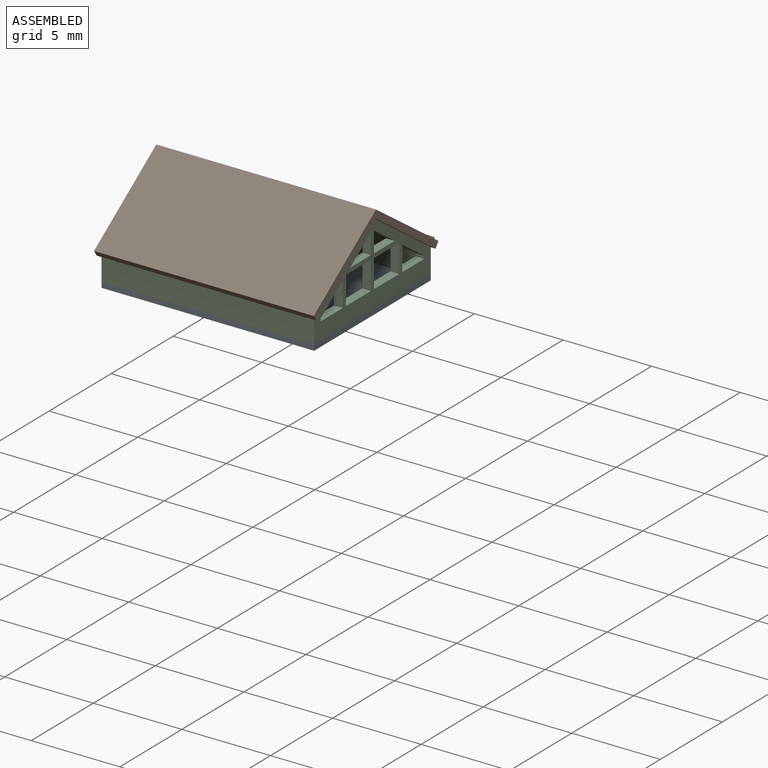
[diagram: assembled view]
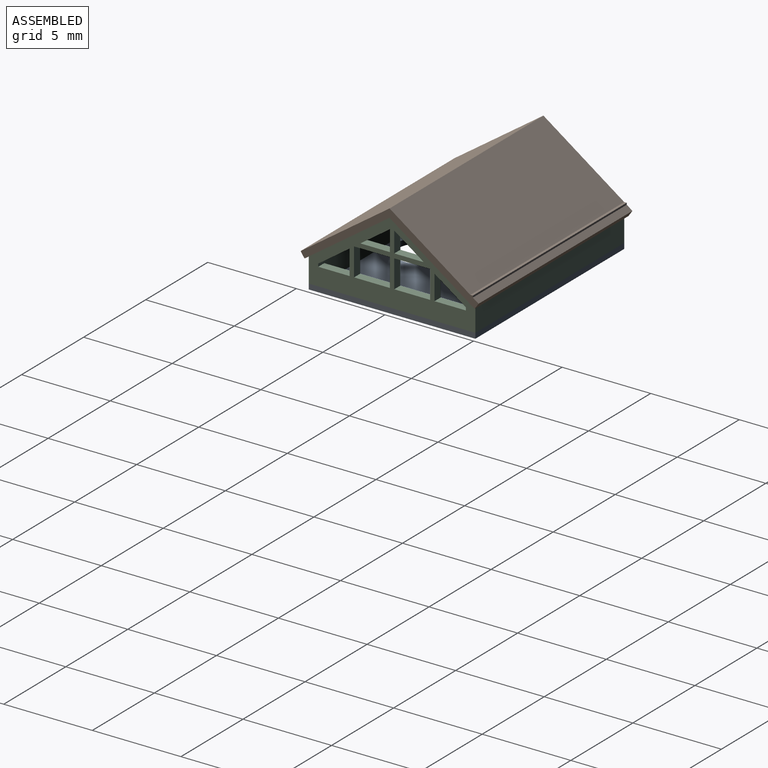
[diagram: assembled view, second angle]
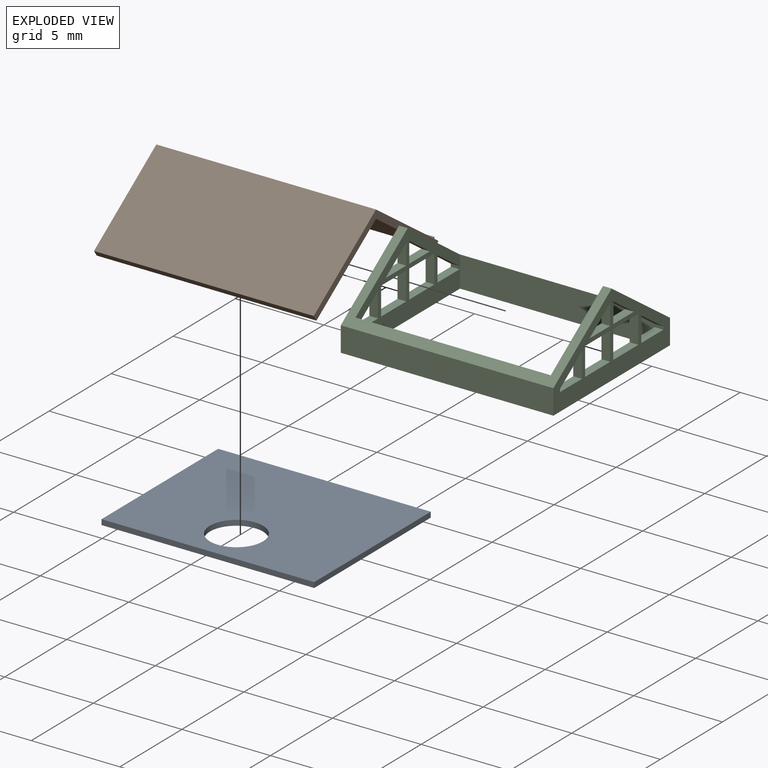
[diagram: exploded view]
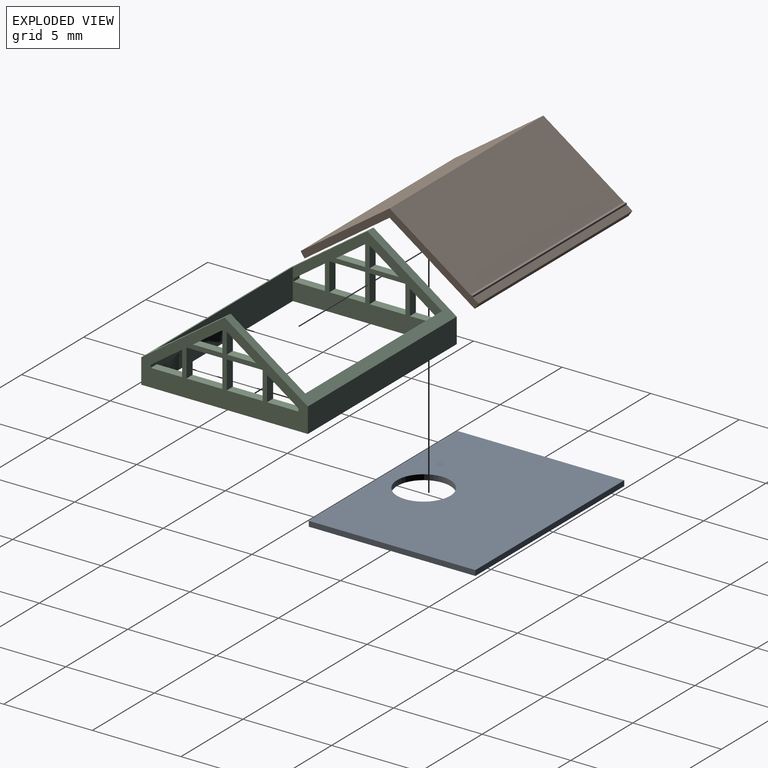
[diagram: exploded view, second angle]
ASSEMBLY  parts=3 mates=2
PART A: 7 faces, bbox 12x9.4x0.3 mm
  f0: plane 9.4x0.3mm, normal (-1,0,0), area 2.8mm2, adj f1,f3,f4,f5
  f1: plane 12x0.3mm, normal (0,-1,0), area 3.6mm2, adj f0,f2,f4,f5
  f2: plane 9.4x0.3mm, normal (1,0,0), area 2.8mm2, adj f1,f3,f4,f5
  f3: plane 12x0.3mm, normal (0,1,0), area 3.6mm2, adj f0,f2,f4,f5
  f4: plane 12x9.4mm, normal (0,0,-1), area 105.7mm2, adj f0,f1,f2,f3,f6
  f5: plane 12x9.4mm, normal (0,0,1), area 105.7mm2, adj f0,f1,f2,f3,f6
  f6: cylinder r=1.5mm len=3mm, axis (0,0,1), area 2.8mm2, adj f4,f5
PART B: 11 faces, bbox 12.4x10x3.8 mm
  f0: plane 12.4x4.56mm, normal (0,0.57,0.82), area 69mm2, adj f1,f8,f9,f10
  f1: plane 12.4x0.14mm, normal (0,0,1), area 1.8mm2, adj f0,f2,f9,f10
  f2: plane 12.4x0.1mm, normal (0,1,0), area 1.2mm2, adj f1,f3,f9,f10
  f3: plane 12.4x0.32mm, normal (0,0.57,0.82), area 4.9mm2, adj f2,f4,f9,f10
  f4: plane 12.4x0.32mm, normal (0,0.82,-0.57), area 4.8mm2, adj f3,f5,f9,f10
  f5: plane 12.4x4.8mm, normal (0,-0.57,-0.82), area 72.7mm2, adj f4,f6,f9,f10
  f6: plane 12.4x4.8mm, normal (0,0.57,-0.82), area 72.7mm2, adj f5,f7,f9,f10
  f7: plane 12.4x0.32mm, normal (0,-0.82,-0.57), area 4.8mm2, adj f6,f8,f9,f10
  f8: plane 12.4x5.02mm, normal (0,-0.57,0.82), area 76mm2, adj f0,f7,f9,f10
  f9: plane 10.05x3.84mm, normal (-1,0,0), area 4.7mm2, adj f0,f1,f2,f3,f4,f5,f6,f7
  f10: plane 10.05x3.84mm, normal (1,0,0), area 4.7mm2, adj f0,f1,f2,f3,f4,f5,f6,f7
PART C: 55 faces, bbox 12x9.4x4.7 mm
  f0: plane 9.4x4.69mm, normal (-1,0,0), area 17.5mm2, adj f4,f5,f8,f9,f10,f11,f12,f13
  f1: plane 9.4x4.69mm, normal (1,0,0), area 17.5mm2, adj f4,f5,f8,f9,f10,f33,f34,f35
  f2: plane 8.42x4.69mm, normal (-1,0,0), area 16mm2, adj f6,f7,f8,f9,f10,f33,f34,f35
  f3: plane 8.42x4.69mm, normal (1,0,0), area 16mm2, adj f6,f7,f8,f9,f10,f11,f12,f13
  f4: plane 12x1.4mm, normal (0,-1,0), area 16.8mm2, adj f0,f1,f8,f10
  f5: plane 12x1.4mm, normal (0,1,0), area 16.8mm2, adj f0,f1,f8,f9
  f6: plane 11.02x1.74mm, normal (0,-1,0), area 19.2mm2, adj f2,f3,f8,f9
  f7: plane 11.02x1.74mm, normal (0,1,0), area 19.2mm2, adj f2,f3,f8,f10
  f8: plane 12x9.4mm, normal (0,0,-1), area 20mm2, adj f0,f1,f2,f3,f4,f5,f6,f7
  f9: plane 12x4.7mm, normal (0,0.57,0.82), area 12.2mm2, adj f0,f1,f2,f3,f5,f6,f10
  f10: plane 12x4.7mm, normal (0,-0.57,0.82), area 12.2mm2, adj f0,f1,f2,f3,f4,f7,f9
  f11: plane 1.77x0.49mm, normal (0,0,1), area 0.9mm2, adj f0,f3,f12,f14
  f12: plane 1.4x0.49mm, normal (0,1,0), area 0.7mm2, adj f0,f3,f11,f13
  f13: plane 1.77x1.24mm, normal (0,-0.57,-0.82), area 1.1mm2, adj f0,f3,f12,f14
  f14: plane 0.49x0.16mm, normal (0,-1,0), area 0.1mm2, adj f0,f3,f11,f13
  f15: plane 1.66x0.49mm, normal (0,0,1), area 0.8mm2, adj f0,f3,f16,f17
  f16: plane 1.16x0.49mm, normal (0,1,0), area 0.6mm2, adj f0,f3,f15,f17
  f17: plane 1.66x1.16mm, normal (0,-0.57,-0.82), area 1mm2, adj f0,f3,f15,f16
  f18: plane 2.02x0.49mm, normal (0,0,1), area 1mm2, adj f0,f3,f19,f21
  f19: plane 1.58x0.49mm, normal (0,1,0), area 0.8mm2, adj f0,f3,f18,f20
  f20: plane 2.02x0.49mm, normal (0,0,-1), area 1mm2, adj f0,f3,f19,f21
  f21: plane 1.58x0.49mm, normal (0,-1,0), area 0.8mm2, adj f0,f3,f18,f20
  f22: plane 2.02x0.49mm, normal (0,0,1), area 1mm2, adj f0,f3,f23,f25
  f23: plane 1.58x0.49mm, normal (0,1,0), area 0.8mm2, adj f0,f3,f22,f24
  f24: plane 2.02x0.49mm, normal (0,0,-1), area 1mm2, adj f0,f3,f23,f25
  f25: plane 1.58x0.49mm, normal (0,-1,0), area 0.8mm2, adj f0,f3,f22,f24
  f26: plane 1.16x0.49mm, normal (0,-1,0), area 0.6mm2, adj f0,f3,f27,f28
  f27: plane 1.66x0.49mm, normal (0,0,1), area 0.8mm2, adj f0,f3,f26,f28
  f28: plane 1.66x1.16mm, normal (0,0.57,-0.82), area 1mm2, adj f0,f3,f26,f27
  f29: plane 0.49x0.16mm, normal (0,1,0), area 0.1mm2, adj f0,f3,f30,f32
  f30: plane 1.77x1.24mm, normal (0,0.57,-0.82), area 1.1mm2, adj f0,f3,f29,f31
  f31: plane 1.4x0.49mm, normal (0,-1,0), area 0.7mm2, adj f0,f3,f30,f32
  f32: plane 1.77x0.49mm, normal (0,0,1), area 0.9mm2, adj f0,f3,f29,f31
  f33: plane 0.49x0.16mm, normal (0,-1,0), area 0.1mm2, adj f1,f2,f34,f36
  f34: plane 1.77x1.24mm, normal (0,-0.57,-0.82), area 1.1mm2, adj f1,f2,f33,f35
  f35: plane 1.4x0.49mm, normal (0,1,0), area 0.7mm2, adj f1,f2,f34,f36
  f36: plane 1.77x0.49mm, normal (0,0,1), area 0.9mm2, adj f1,f2,f33,f35
  f37: plane 1.66x1.16mm, normal (0,-0.57,-0.82), area 1mm2, adj f1,f2,f38,f39
  f38: plane 1.16x0.49mm, normal (0,1,0), area 0.6mm2, adj f1,f2,f37,f39
  f39: plane 1.66x0.49mm, normal (0,0,1), area 0.8mm2, adj f1,f2,f37,f38
  f40: plane 1.58x0.49mm, normal (0,-1,0), area 0.8mm2, adj f1,f2,f41,f43
  f41: plane 2.02x0.49mm, normal (0,0,-1), area 1mm2, adj f1,f2,f40,f42
  f42: plane 1.58x0.49mm, normal (0,1,0), area 0.8mm2, adj f1,f2,f41,f43
  f43: plane 2.02x0.49mm, normal (0,0,1), area 1mm2, adj f1,f2,f40,f42
  f44: plane 1.58x0.49mm, normal (0,-1,0), area 0.8mm2, adj f1,f2,f45,f47
  f45: plane 2.02x0.49mm, normal (0,0,-1), area 1mm2, adj f1,f2,f44,f46
  f46: plane 1.58x0.49mm, normal (0,1,0), area 0.8mm2, adj f1,f2,f45,f47
  f47: plane 2.02x0.49mm, normal (0,0,1), area 1mm2, adj f1,f2,f44,f46
  f48: plane 1.66x1.16mm, normal (0,0.57,-0.82), area 1mm2, adj f1,f2,f49,f50
  f49: plane 1.66x0.49mm, normal (0,0,1), area 0.8mm2, adj f1,f2,f48,f50
  f50: plane 1.16x0.49mm, normal (0,-1,0), area 0.6mm2, adj f1,f2,f48,f49
  f51: plane 1.77x0.49mm, normal (0,0,1), area 0.9mm2, adj f1,f2,f52,f54
  f52: plane 1.4x0.49mm, normal (0,-1,0), area 0.7mm2, adj f1,f2,f51,f53
  f53: plane 1.77x1.24mm, normal (0,0.57,-0.82), area 1.1mm2, adj f1,f2,f52,f54
  f54: plane 0.49x0.16mm, normal (0,1,0), area 0.1mm2, adj f1,f2,f51,f53
PLACE A t=(4.45,-14.27,7.28)mm
PLACE B t=(4.45,-14.27,7.28)mm
PLACE C t=(4.45,-14.27,7.28)mm
MATE parallel B.f9 <-> C.f0  axis (-1,0,0) through (4.25,-9.57,11.97)mm
MATE planar C.f8 <-> A.f5  axis (0,0,-1) through (16.45,-14.27,7.28)mm
